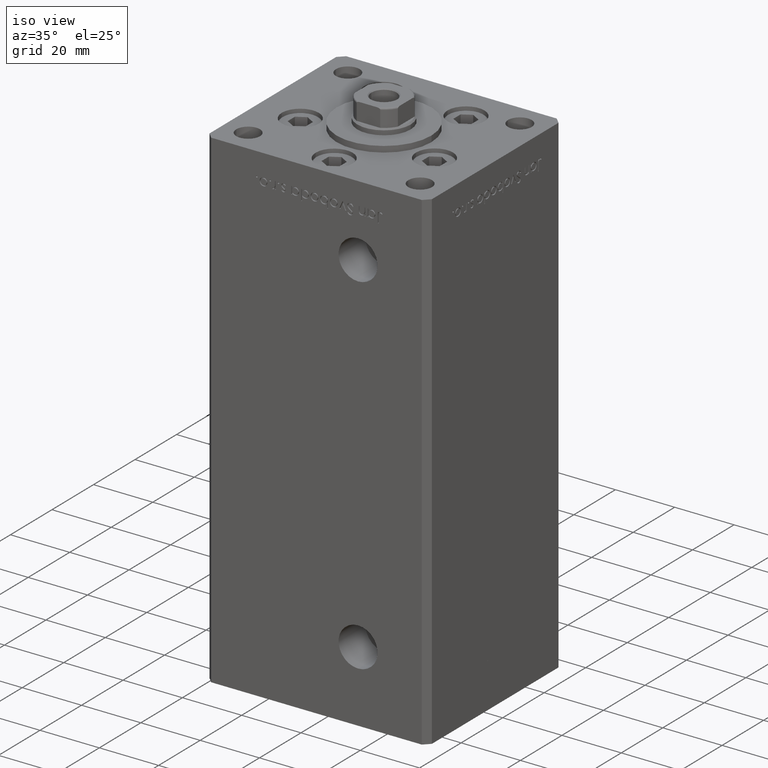
[diagram: clean part render]
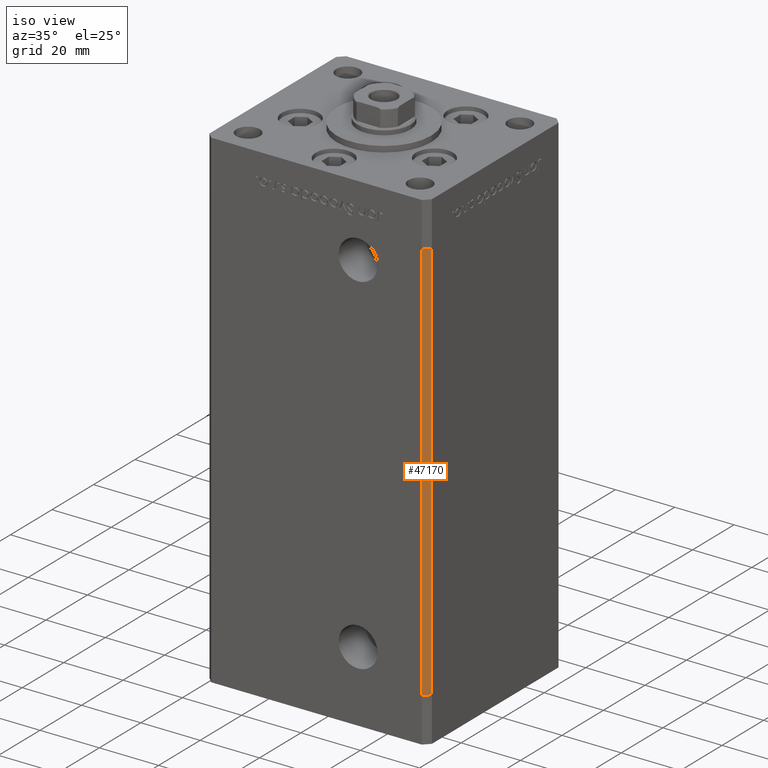
[diagram: same view with one face highlighted and labeled with its STEP entity id]
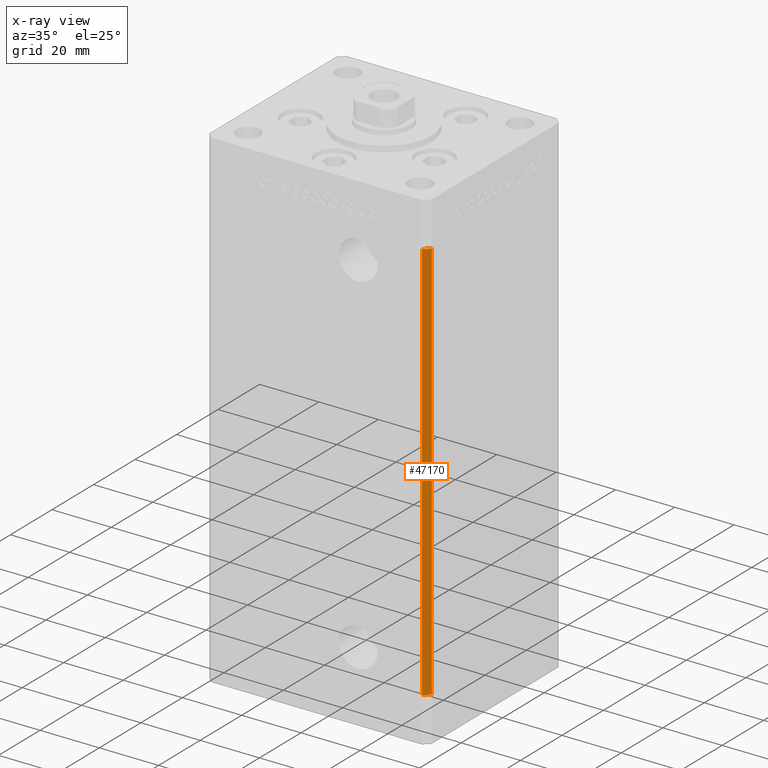
[diagram: x-ray of the same camera — body ghosted, the highlighted face saturated]
A machine part, iso view. The second image highlights one B-rep face of the part: STEP entity #47170.
The next image is the same camera in x-ray: the body ghosted, the highlighted face saturated — about 0% of this face is hidden behind the body in this view.
In plain terms, the highlighted planar face has unit normal (0.7071, -0.7071, 0).
Its self-contained STEP definition (entity closure, byte-faithful):
#3473 = EDGE_CURVE ( 'NONE', #23790, #34578, #44331, .T. ) ;
#6165 = CARTESIAN_POINT ( 'NONE',  ( 37.49999999999999289, -30.50000000000000000, 136.0000000000000000 ) ) ;
#15468 = EDGE_CURVE ( 'NONE', #20948, #34578, #37095, .T. ) ;
#15652 = VECTOR ( 'NONE', #32215, 1000.000000000000114 ) ;
#16258 = VERTEX_POINT ( 'NONE', #23641 ) ;
#18596 = FACE_OUTER_BOUND ( 'NONE', #21917, .T. ) ;
#19756 = DIRECTION ( 'NONE',  ( -0.7071067811865474617, -0.7071067811865474617, 0.000000000000000000 ) ) ;
#19793 = CARTESIAN_POINT ( 'NONE',  ( 37.49999999999999289, -30.50000000000000000, 0.000000000000000000 ) ) ;
#20874 = VECTOR ( 'NONE', #19756, 1000.000000000000114 ) ;
#20948 = VERTEX_POINT ( 'NONE', #33332 ) ;
#21917 = EDGE_LOOP ( 'NONE', ( #31477, #45104, #50483, #47369 ) ) ;
#22016 = DIRECTION ( 'NONE',  ( -0.000000000000000000, -0.000000000000000000, -1.000000000000000000 ) ) ;
#23438 = CARTESIAN_POINT ( 'NONE',  ( 37.49999999999999289, -30.50000000000000000, 136.0000000000000000 ) ) ;
#23641 = CARTESIAN_POINT ( 'NONE',  ( 37.49999999999999289, -30.50000000000000000, 136.0000000000000000 ) ) ;
#23790 = VERTEX_POINT ( 'NONE', #42307 ) ;
#24152 = VECTOR ( 'NONE', #37856, 1000.000000000000000 ) ;
#26139 = AXIS2_PLACEMENT_3D ( 'NONE', #47609, #31000, #42869 ) ;
#27538 = PLANE ( 'NONE',  #26139 ) ;
#29937 = CARTESIAN_POINT ( 'NONE',  ( 35.49999999999999289, -32.50000000000000000, 136.0000000000000000 ) ) ;
#31000 = DIRECTION ( 'NONE',  ( 0.7071067811865475727, -0.7071067811865475727, 0.000000000000000000 ) ) ;
#31477 = ORIENTED_EDGE ( 'NONE', *, *, #3473, .F. ) ;
#32166 = LINE ( 'NONE', #23438, #20874 ) ;
#32215 = DIRECTION ( 'NONE',  ( -0.7071067811865474617, -0.7071067811865474617, 0.000000000000000000 ) ) ;
#32406 = EDGE_CURVE ( 'NONE', #16258, #23790, #42331, .T. ) ;
#33332 = CARTESIAN_POINT ( 'NONE',  ( 35.49999999999999289, -32.50000000000000000, 136.0000000000000000 ) ) ;
#34578 = VERTEX_POINT ( 'NONE', #50462 ) ;
#37095 = LINE ( 'NONE', #29937, #46367 ) ;
#37856 = DIRECTION ( 'NONE',  ( -0.000000000000000000, -0.000000000000000000, -1.000000000000000000 ) ) ;
#38579 = EDGE_CURVE ( 'NONE', #16258, #20948, #32166, .T. ) ;
#42307 = CARTESIAN_POINT ( 'NONE',  ( 37.49999999999999289, -30.50000000000000000, 0.000000000000000000 ) ) ;
#42331 = LINE ( 'NONE', #6165, #24152 ) ;
#42869 = DIRECTION ( 'NONE',  ( 0.7071067811865474617, 0.7071067811865474617, 0.000000000000000000 ) ) ;
#44331 = LINE ( 'NONE', #19793, #15652 ) ;
#45104 = ORIENTED_EDGE ( 'NONE', *, *, #32406, .F. ) ;
#46367 = VECTOR ( 'NONE', #22016, 1000.000000000000000 ) ;
#47170 = ADVANCED_FACE ( 'NONE', ( #18596 ), #27538, .T. ) ;
#47369 = ORIENTED_EDGE ( 'NONE', *, *, #15468, .T. ) ;
#47609 = CARTESIAN_POINT ( 'NONE',  ( 37.49999999999999289, -30.50000000000000000, 136.0000000000000000 ) ) ;
#50462 = CARTESIAN_POINT ( 'NONE',  ( 35.49999999999999289, -32.50000000000000000, 0.000000000000000000 ) ) ;
#50483 = ORIENTED_EDGE ( 'NONE', *, *, #38579, .T. ) ;